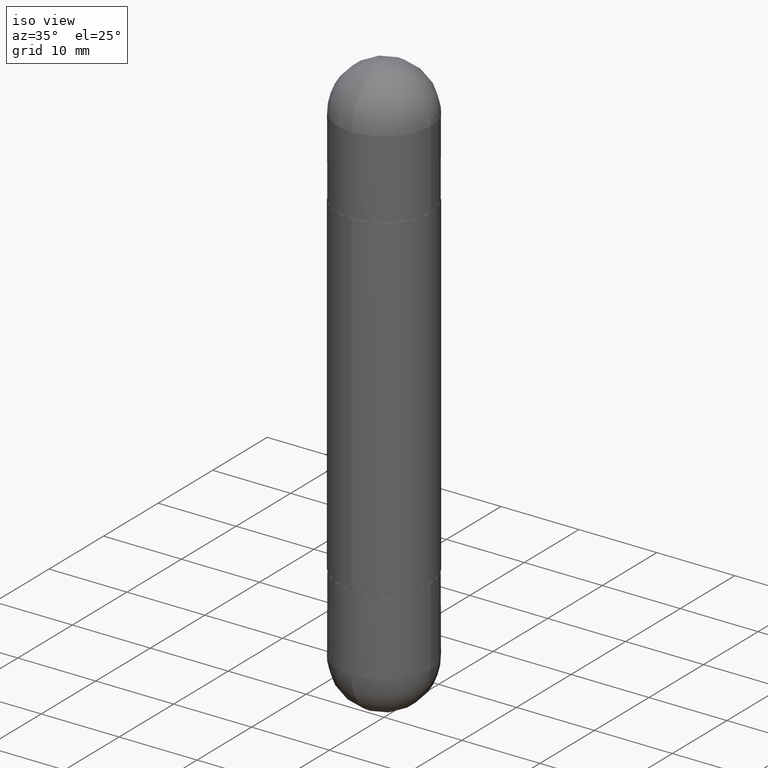
[diagram: clean part render]
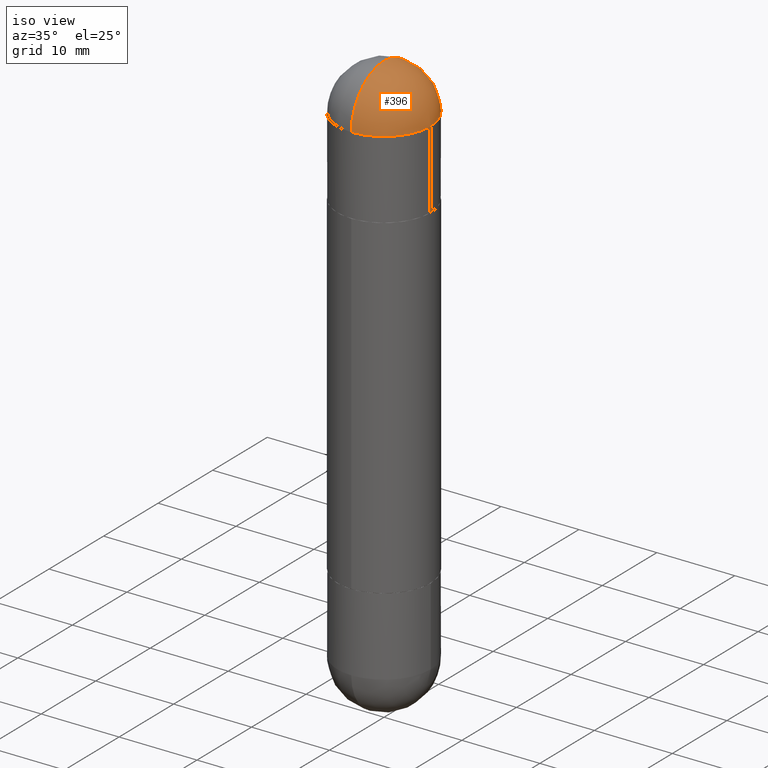
[diagram: same view with one face highlighted and labeled with its STEP entity id]
A machine part, iso view. The second image highlights one B-rep face of the part: STEP entity #396.
In plain terms, the highlighted spherical surface has radius 5.9995 mm.
Its self-contained STEP definition (entity closure, byte-faithful):
#3 = EDGE_LOOP ( 'NONE', ( #600, #292, #599, #556 ) ) ;
#17 = VERTEX_POINT ( 'NONE', #536 ) ;
#19 = SPHERICAL_SURFACE ( 'NONE', #504, 0.2362000000000002709 ) ;
#21 = EDGE_CURVE ( 'NONE', #17, #225, #312, .T. ) ;
#28 = DIRECTION ( 'NONE',  ( 6.982962677686265922E-15, 1.000000000000000000, 3.469747663417773058E-15 ) ) ;
#55 = DIRECTION ( 'NONE',  ( 2.445468806185136597E-29, -3.491481338843145583E-15, 1.000000000000000000 ) ) ;
#67 = VERTEX_POINT ( 'NONE', #484 ) ;
#82 = DIRECTION ( 'NONE',  ( 2.445468806185136597E-29, -3.491481338843145583E-15, 1.000000000000000000 ) ) ;
#96 = CARTESIAN_POINT ( 'NONE',  ( 6.312240780968655053E-29, -9.959140573241337406E-15, -0.2362000000000000766 ) ) ;
#156 = CARTESIAN_POINT ( 'NONE',  ( 6.312240780968655053E-29, -9.959140573241337406E-15, -0.2362000000000000766 ) ) ;
#192 = CARTESIAN_POINT ( 'NONE',  ( 6.312240780968655053E-29, -9.959140573241337406E-15, -0.2362000000000000766 ) ) ;
#212 = CARTESIAN_POINT ( 'NONE',  ( 6.643360558882540179E-29, -9.484958205101285532E-15, -0.2362000000000006039 ) ) ;
#225 = VERTEX_POINT ( 'NONE', #752 ) ;
#230 = CARTESIAN_POINT ( 'NONE',  ( 6.643360558882540179E-29, -9.484958205101285532E-15, -0.2362000000000006039 ) ) ;
#232 = CIRCLE ( 'NONE', #376, 0.2362000000000002709 ) ;
#292 = ORIENTED_EDGE ( 'NONE', *, *, #340, .T. ) ;
#312 = CIRCLE ( 'NONE', #771, 0.2361999999999999933 ) ;
#333 = CARTESIAN_POINT ( 'NONE',  ( 1.649375784469561606E-15, 0.2361999999999903899, -0.2361999999999997990 ) ) ;
#340 = EDGE_CURVE ( 'NONE', #67, #17, #232, .T. ) ;
#376 = AXIS2_PLACEMENT_3D ( 'NONE', #192, #624, #560 ) ;
#386 = CIRCLE ( 'NONE', #503, 0.2362000000000002709 ) ;
#396 = ADVANCED_FACE ( 'NONE', ( #397 ), #19, .T. ) ;
#397 = FACE_OUTER_BOUND ( 'NONE', #3, .T. ) ;
#410 = DIRECTION ( 'NONE',  ( -1.000000000000000000, 6.982962677686265922E-15, 4.883557194083112340E-29 ) ) ;
#426 = EDGE_CURVE ( 'NONE', #225, #468, #748, .T. ) ;
#427 = DIRECTION ( 'NONE',  ( 1.000000000000000000, -6.982962677686265133E-15, 0.000000000000000000 ) ) ;
#451 = DIRECTION ( 'NONE',  ( -6.982962677686265922E-15, -1.000000000000000000, 0.000000000000000000 ) ) ;
#468 = VERTEX_POINT ( 'NONE', #333 ) ;
#484 = CARTESIAN_POINT ( 'NONE',  ( 6.899960026864792464E-29, -1.076936538677815810E-14, 2.048885995248197414E-16 ) ) ;
#491 = EDGE_CURVE ( 'NONE', #67, #468, #386, .T. ) ;
#503 = AXIS2_PLACEMENT_3D ( 'NONE', #156, #410, #451 ) ;
#504 = AXIS2_PLACEMENT_3D ( 'NONE', #96, #780, #28 ) ;
#536 = CARTESIAN_POINT ( 'NONE',  ( -1.620449627073571772E-15, -0.2362000000000098743, -0.2362000000000014366 ) ) ;
#547 = AXIS2_PLACEMENT_3D ( 'NONE', #212, #82, #709 ) ;
#556 = ORIENTED_EDGE ( 'NONE', *, *, #426, .T. ) ;
#560 = DIRECTION ( 'NONE',  ( 6.860497997771530774E-15, 1.000000000000000000, 0.000000000000000000 ) ) ;
#599 = ORIENTED_EDGE ( 'NONE', *, *, #21, .T. ) ;
#600 = ORIENTED_EDGE ( 'NONE', *, *, #491, .F. ) ;
#624 = DIRECTION ( 'NONE',  ( 1.000000000000000000, -6.860497997771530774E-15, -4.840798879624142912E-29 ) ) ;
#709 = DIRECTION ( 'NONE',  ( 1.000000000000000000, -6.982962677686265133E-15, 0.000000000000000000 ) ) ;
#748 = CIRCLE ( 'NONE', #547, 0.2361999999999999933 ) ;
#752 = CARTESIAN_POINT ( 'NONE',  ( 0.2361999999999999933, -1.044703588801951204E-14, -0.2362000000000006039 ) ) ;
#771 = AXIS2_PLACEMENT_3D ( 'NONE', #230, #55, #427 ) ;
#780 = DIRECTION ( 'NONE',  ( 1.000000000000000000, -6.982962677686265922E-15, -4.883557194083112901E-29 ) ) ;